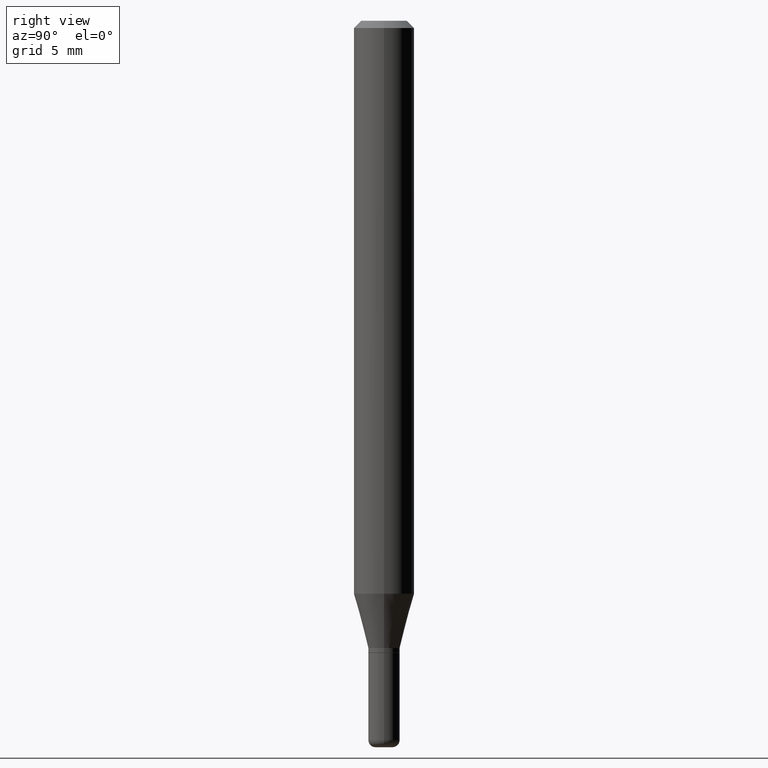
[diagram: clean part render]
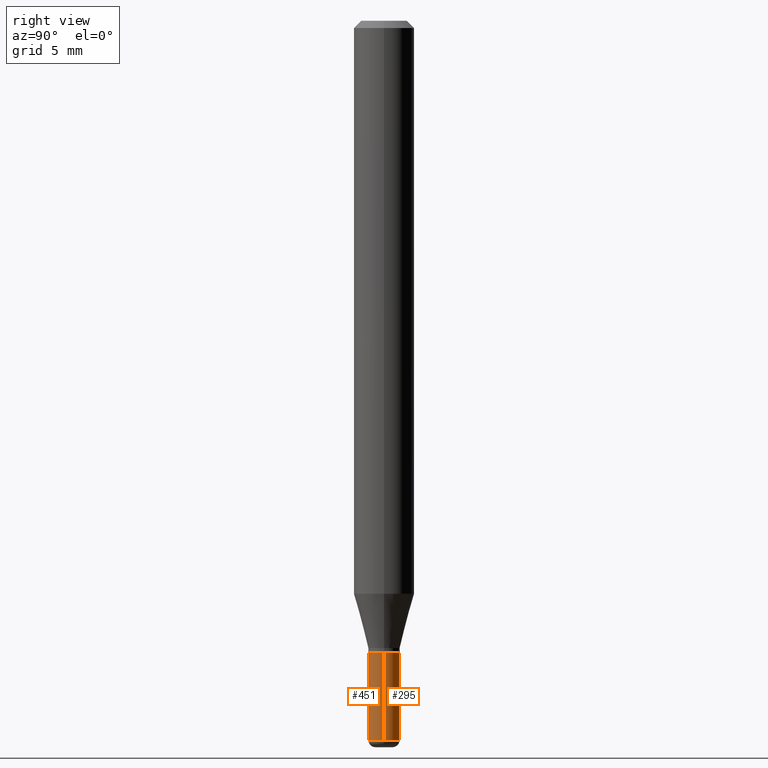
[diagram: same view with one multi-face feature highlighted, each face labeled with its STEP entity id]
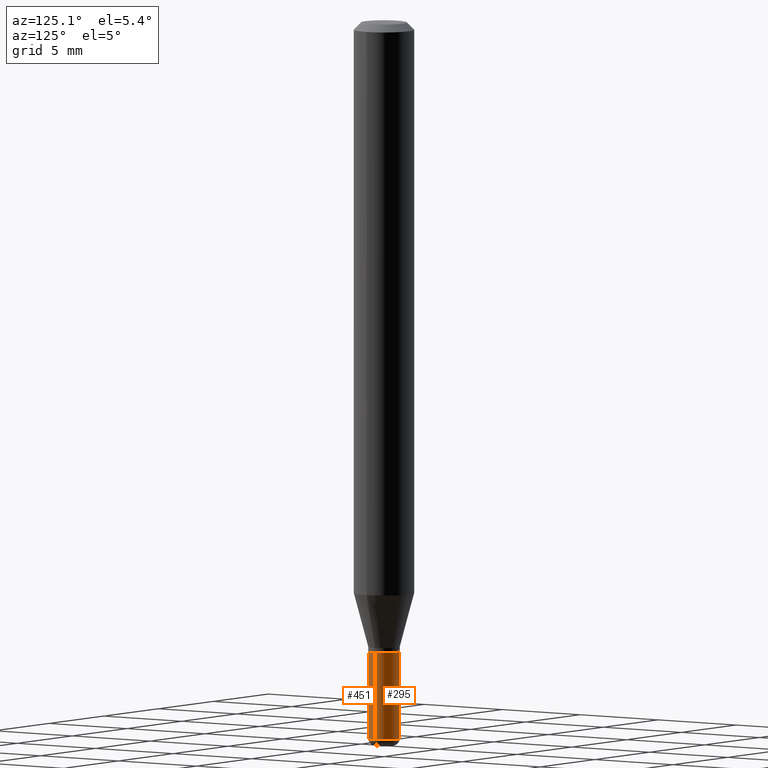
[diagram: same view with one multi-face feature highlighted, each face labeled with its STEP entity id]
A machine part, right view. The highlighted faces form ONE feature: a constant-radius fillet chain: 2 tangent blend faces with common blend radius 0.8255 mm. The faces share edges in the B-rep.
A second angle (auxiliary view) of the same feature is appended — it is thin or edge-on in the first view.
Their STEP definitions:
[1] entity #451 (Cylinder):
#6 = VERTEX_POINT ( 'NONE', #340 ) ;
#58 = ORIENTED_EDGE ( 'NONE', *, *, #71, .T. ) ;
#62 = DIRECTION ( 'NONE',  ( 1.000000000000000000, -6.982962677686261189E-15, 0.000000000000000000 ) ) ;
#69 = LINE ( 'NONE', #304, #355 ) ;
#71 = EDGE_CURVE ( 'NONE', #394, #6, #69, .T. ) ;
#78 = DIRECTION ( 'NONE',  ( -2.445468806185136597E-29, 3.491481338843145583E-15, 1.000000000000000000 ) ) ;
#93 = VERTEX_POINT ( 'NONE', #457 ) ;
#117 = DIRECTION ( 'NONE',  ( 1.000000000000000000, -6.982962677686267499E-15, 4.876176775795936353E-29 ) ) ;
#134 = VERTEX_POINT ( 'NONE', #446 ) ;
#152 = CIRCLE ( 'NONE', #173, 0.03249999999999998723 ) ;
#168 = EDGE_CURVE ( 'NONE', #93, #134, #401, .T. ) ;
#173 = AXIS2_PLACEMENT_3D ( 'NONE', #460, #470, #62 ) ;
#179 = CIRCLE ( 'NONE', #192, 0.03250000000000000111 ) ;
#186 = CARTESIAN_POINT ( 'NONE',  ( 0.000000000000000000, 0.000000000000000000, 0.000000000000000000 ) ) ;
#192 = AXIS2_PLACEMENT_3D ( 'NONE', #323, #78, #476 ) ;
#201 = CARTESIAN_POINT ( 'NONE',  ( 0.03249999999999998723, -5.411796075206874844E-15, -1.485000000000000098 ) ) ;
#205 = VECTOR ( 'NONE', #354, 39.37007874015748143 ) ;
#225 = FACE_OUTER_BOUND ( 'NONE', #298, .T. ) ;
#264 = EDGE_CURVE ( 'NONE', #134, #6, #179, .T. ) ;
#265 = DIRECTION ( 'NONE',  ( -2.445468806185136877E-29, 3.491481338843145188E-15, 1.000000000000000000 ) ) ;
#282 = EDGE_CURVE ( 'NONE', #93, #394, #152, .T. ) ;
#298 = EDGE_LOOP ( 'NONE', ( #351, #494, #58, #382 ) ) ;
#304 = CARTESIAN_POINT ( 'NONE',  ( 0.03249999999999999417, -2.269462870248036484E-16, 1.584757452133678993E-30 ) ) ;
#323 = CARTESIAN_POINT ( 'NONE',  ( 3.191336792071603685E-29, -4.556383147190305752E-15, -1.305000000000000160 ) ) ;
#325 = CARTESIAN_POINT ( 'NONE',  ( -0.03249999999999999417, 2.309263891220325190E-16, -1.598653904332844057E-30 ) ) ;
#338 = DIRECTION ( 'NONE',  ( -2.445468806185136597E-29, 3.491481338843145583E-15, 1.000000000000000000 ) ) ;
#340 = CARTESIAN_POINT ( 'NONE',  ( 0.03250000000000000111, -4.783329434215109105E-15, -1.305000000000000160 ) ) ;
#351 = ORIENTED_EDGE ( 'NONE', *, *, #168, .F. ) ;
#354 = DIRECTION ( 'NONE',  ( -2.445468806185136877E-29, 3.491481338843145188E-15, 1.000000000000000000 ) ) ;
#355 = VECTOR ( 'NONE', #265, 39.37007874015748143 ) ;
#371 = AXIS2_PLACEMENT_3D ( 'NONE', #186, #338, #117 ) ;
#374 = CYLINDRICAL_SURFACE ( 'NONE', #371, 0.03249999999999999417 ) ;
#382 = ORIENTED_EDGE ( 'NONE', *, *, #264, .F. ) ;
#394 = VERTEX_POINT ( 'NONE', #201 ) ;
#401 = LINE ( 'NONE', #325, #205 ) ;
#446 = CARTESIAN_POINT ( 'NONE',  ( -0.03250000000000000111, -4.639690078564155857E-15, -1.305000000000000160 ) ) ;
#451 = ADVANCED_FACE ( 'NONE', ( #225 ), #374, .T. ) ;
#457 = CARTESIAN_POINT ( 'NONE',  ( -0.03249999999999998723, -4.639690078564155857E-15, -1.485000000000000098 ) ) ;
#460 = CARTESIAN_POINT ( 'NONE',  ( 3.631521177184928138E-29, -5.184849788182071492E-15, -1.485000000000000098 ) ) ;
#470 = DIRECTION ( 'NONE',  ( -2.445468806185136597E-29, 3.491481338843145583E-15, 1.000000000000000000 ) ) ;
#476 = DIRECTION ( 'NONE',  ( 1.000000000000000000, -6.982962677686258033E-15, 0.000000000000000000 ) ) ;
#494 = ORIENTED_EDGE ( 'NONE', *, *, #282, .T. ) ;
[2] entity #295 (Cylinder):
#6 = VERTEX_POINT ( 'NONE', #340 ) ;
#9 = DIRECTION ( 'NONE',  ( 1.000000000000000000, -6.982962677686261189E-15, 0.000000000000000000 ) ) ;
#32 = CIRCLE ( 'NONE', #311, 0.03250000000000000111 ) ;
#33 = DIRECTION ( 'NONE',  ( 1.000000000000000000, -6.982962677686267499E-15, 4.876176775795936353E-29 ) ) ;
#40 = AXIS2_PLACEMENT_3D ( 'NONE', #203, #274, #33 ) ;
#69 = LINE ( 'NONE', #304, #355 ) ;
#71 = EDGE_CURVE ( 'NONE', #394, #6, #69, .T. ) ;
#75 = ORIENTED_EDGE ( 'NONE', *, *, #168, .T. ) ;
#87 = DIRECTION ( 'NONE',  ( 1.000000000000000000, -6.982962677686258033E-15, 0.000000000000000000 ) ) ;
#93 = VERTEX_POINT ( 'NONE', #457 ) ;
#95 = FACE_OUTER_BOUND ( 'NONE', #330, .T. ) ;
#130 = ORIENTED_EDGE ( 'NONE', *, *, #71, .F. ) ;
#134 = VERTEX_POINT ( 'NONE', #446 ) ;
#163 = CARTESIAN_POINT ( 'NONE',  ( 3.191336792071603685E-29, -4.556383147190305752E-15, -1.305000000000000160 ) ) ;
#168 = EDGE_CURVE ( 'NONE', #93, #134, #401, .T. ) ;
#169 = ORIENTED_EDGE ( 'NONE', *, *, #464, .T. ) ;
#201 = CARTESIAN_POINT ( 'NONE',  ( 0.03249999999999998723, -5.411796075206874844E-15, -1.485000000000000098 ) ) ;
#203 = CARTESIAN_POINT ( 'NONE',  ( 0.000000000000000000, 0.000000000000000000, 0.000000000000000000 ) ) ;
#205 = VECTOR ( 'NONE', #354, 39.37007874015748143 ) ;
#226 = ORIENTED_EDGE ( 'NONE', *, *, #477, .F. ) ;
#265 = DIRECTION ( 'NONE',  ( -2.445468806185136877E-29, 3.491481338843145188E-15, 1.000000000000000000 ) ) ;
#274 = DIRECTION ( 'NONE',  ( -2.445468806185136597E-29, 3.491481338843145583E-15, 1.000000000000000000 ) ) ;
#295 = ADVANCED_FACE ( 'NONE', ( #95 ), #468, .T. ) ;
#304 = CARTESIAN_POINT ( 'NONE',  ( 0.03249999999999999417, -2.269462870248036484E-16, 1.584757452133678993E-30 ) ) ;
#311 = AXIS2_PLACEMENT_3D ( 'NONE', #163, #396, #87 ) ;
#325 = CARTESIAN_POINT ( 'NONE',  ( -0.03249999999999999417, 2.309263891220325190E-16, -1.598653904332844057E-30 ) ) ;
#330 = EDGE_LOOP ( 'NONE', ( #169, #75, #226, #130 ) ) ;
#340 = CARTESIAN_POINT ( 'NONE',  ( 0.03250000000000000111, -4.783329434215109105E-15, -1.305000000000000160 ) ) ;
#354 = DIRECTION ( 'NONE',  ( -2.445468806185136877E-29, 3.491481338843145188E-15, 1.000000000000000000 ) ) ;
#355 = VECTOR ( 'NONE', #265, 39.37007874015748143 ) ;
#394 = VERTEX_POINT ( 'NONE', #201 ) ;
#396 = DIRECTION ( 'NONE',  ( -2.445468806185136597E-29, 3.491481338843145583E-15, 1.000000000000000000 ) ) ;
#401 = LINE ( 'NONE', #325, #205 ) ;
#403 = DIRECTION ( 'NONE',  ( -2.445468806185136597E-29, 3.491481338843145583E-15, 1.000000000000000000 ) ) ;
#415 = CIRCLE ( 'NONE', #433, 0.03249999999999998723 ) ;
#433 = AXIS2_PLACEMENT_3D ( 'NONE', #518, #403, #9 ) ;
#446 = CARTESIAN_POINT ( 'NONE',  ( -0.03250000000000000111, -4.639690078564155857E-15, -1.305000000000000160 ) ) ;
#457 = CARTESIAN_POINT ( 'NONE',  ( -0.03249999999999998723, -4.639690078564155857E-15, -1.485000000000000098 ) ) ;
#464 = EDGE_CURVE ( 'NONE', #394, #93, #415, .T. ) ;
#468 = CYLINDRICAL_SURFACE ( 'NONE', #40, 0.03249999999999999417 ) ;
#477 = EDGE_CURVE ( 'NONE', #6, #134, #32, .T. ) ;
#518 = CARTESIAN_POINT ( 'NONE',  ( 3.631521177184928138E-29, -5.184849788182071492E-15, -1.485000000000000098 ) ) ;